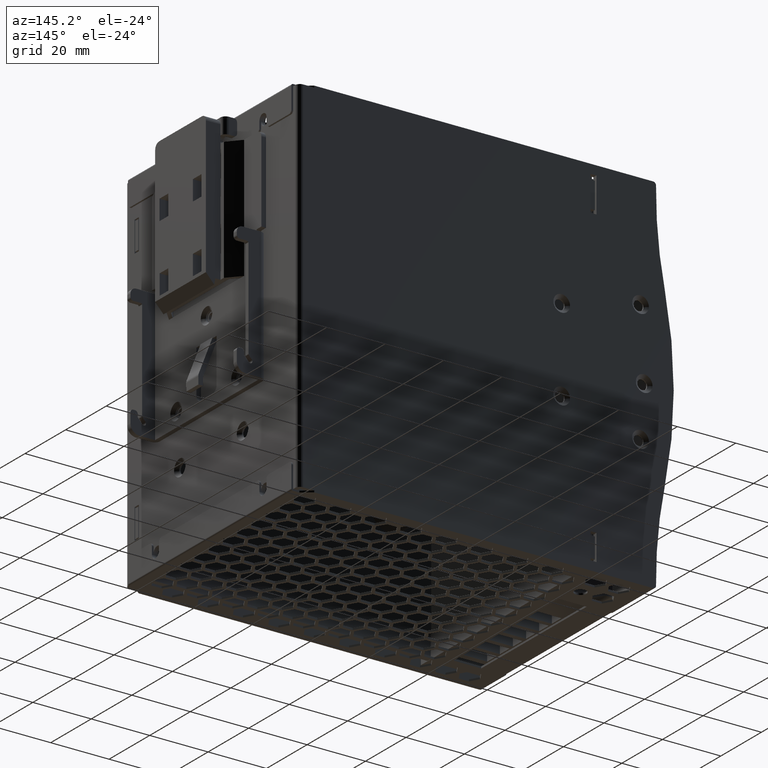
[diagram: clean part render]
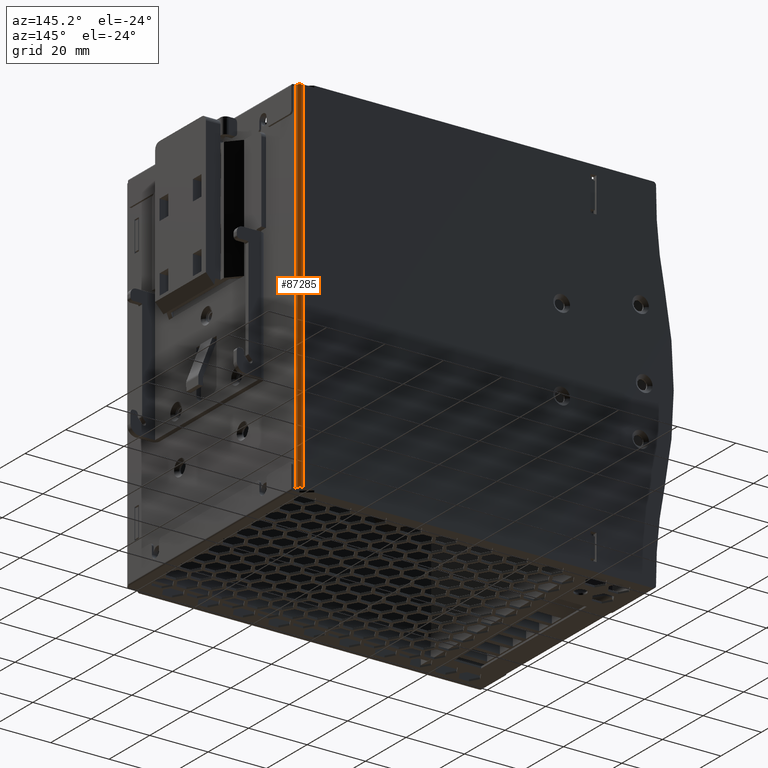
[diagram: same view with one face highlighted and labeled with its STEP entity id]
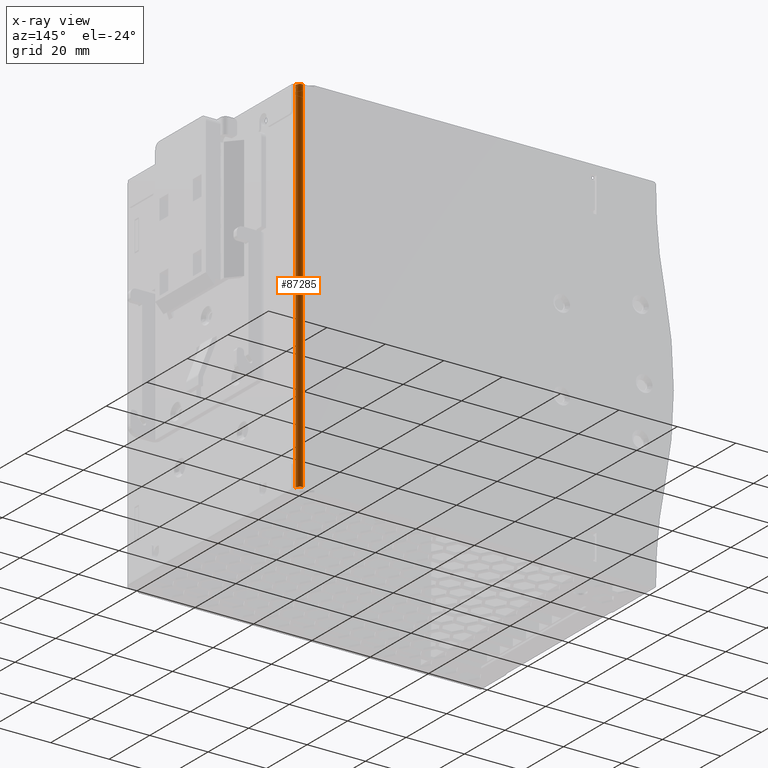
[diagram: x-ray of the same camera — body ghosted, the highlighted face saturated]
A machine part, auxiliary view. The second image highlights one B-rep face of the part: STEP entity #87285.
The next image is the same camera in x-ray: the body ghosted, the highlighted face saturated — about 0% of this face is hidden behind the body in this view.
In plain terms, the highlighted cylindrical surface (edge-blend (fillet) strip) has radius 1.6 mm, axis along (0, 0, -1).
Its self-contained STEP definition (entity closure, byte-faithful):
#87158=CARTESIAN_POINT('',(1658.393260576750000,98.986137000000127,9047.141001601199600));
#87159=VERTEX_POINT('',#87158);
#87166=CARTESIAN_POINT('',(1656.793260576749800,97.386137000000105,9047.141001601199600));
#87167=VERTEX_POINT('',#87166);
#87168=CARTESIAN_POINT('',(1658.393260576750000,97.386137000000105,9047.141001601199600));
#87169=DIRECTION('',(0.0,0.0,1.0));
#87170=DIRECTION('',(1.0,0.0,0.0));
#87171=AXIS2_PLACEMENT_3D('',#87168,#87169,#87170);
#87172=CIRCLE('',#87171,1.600000000000000);
#87173=EDGE_CURVE('',#87159,#87167,#87172,.T.);
#87214=CARTESIAN_POINT('',(1656.793260576749800,97.386137000000105,8923.141001601199600));
#87215=VERTEX_POINT('',#87214);
#87222=CARTESIAN_POINT('',(1658.393260576750000,98.986137000000127,8923.141001601199600));
#87223=VERTEX_POINT('',#87222);
#87224=CARTESIAN_POINT('',(1658.393260576750000,97.386137000000105,8923.141001601199600));
#87225=DIRECTION('',(0.0,0.0,1.0));
#87226=DIRECTION('',(1.0,0.0,0.0));
#87227=AXIS2_PLACEMENT_3D('',#87224,#87225,#87226);
#87228=CIRCLE('',#87227,1.600000000000000);
#87229=EDGE_CURVE('',#87223,#87215,#87228,.T.);
#87264=CARTESIAN_POINT('',(1658.393260576750000,97.386137000000105,8997.141001601199600));
#87265=DIRECTION('',(0.0,0.0,1.0));
#87266=DIRECTION('',(1.0,0.0,0.0));
#87267=AXIS2_PLACEMENT_3D('',#87264,#87265,#87266);
#87268=CYLINDRICAL_SURFACE('',#87267,1.600000000000000);
#87269=CARTESIAN_POINT('',(1658.393260576750000,98.986137000000127,8923.141001601199600));
#87270=DIRECTION('',(0.0,0.0,1.0));
#87271=VECTOR('',#87270,124.0);
#87272=LINE('',#87269,#87271);
#87273=EDGE_CURVE('',#87223,#87159,#87272,.T.);
#87274=ORIENTED_EDGE('',*,*,#87273,.F.);
#87275=ORIENTED_EDGE('',*,*,#87229,.T.);
#87276=CARTESIAN_POINT('',(1656.793260576749800,97.386137000000105,8923.141001601199600));
#87277=DIRECTION('',(0.0,0.0,1.0));
#87278=VECTOR('',#87277,124.0);
#87279=LINE('',#87276,#87278);
#87280=EDGE_CURVE('',#87215,#87167,#87279,.T.);
#87281=ORIENTED_EDGE('',*,*,#87280,.T.);
#87282=ORIENTED_EDGE('',*,*,#87173,.F.);
#87283=EDGE_LOOP('',(#87274,#87275,#87281,#87282));
#87284=FACE_OUTER_BOUND('',#87283,.T.);
#87285=ADVANCED_FACE('',(#87284),#87268,.T.);